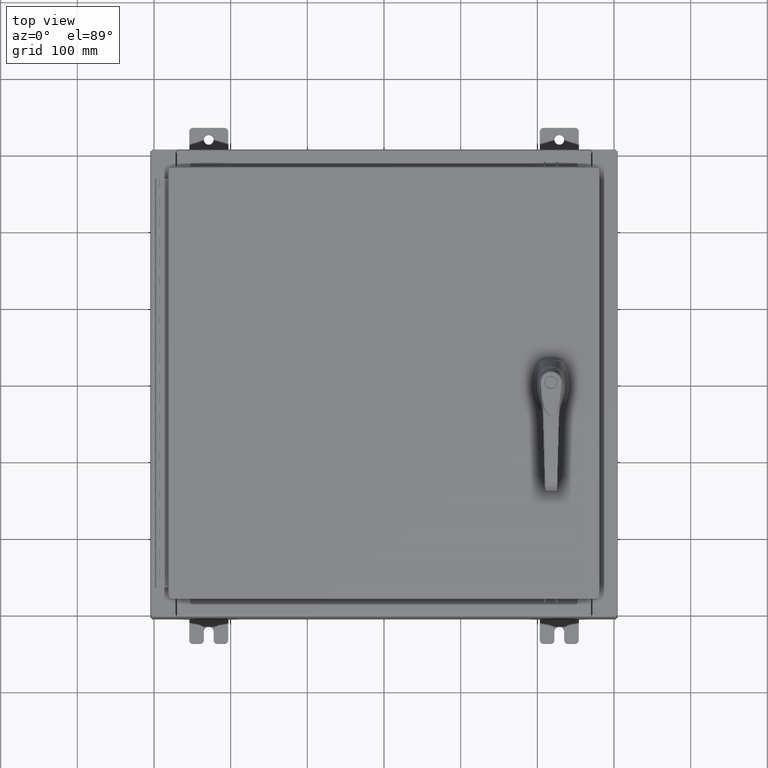
[diagram: clean part render]
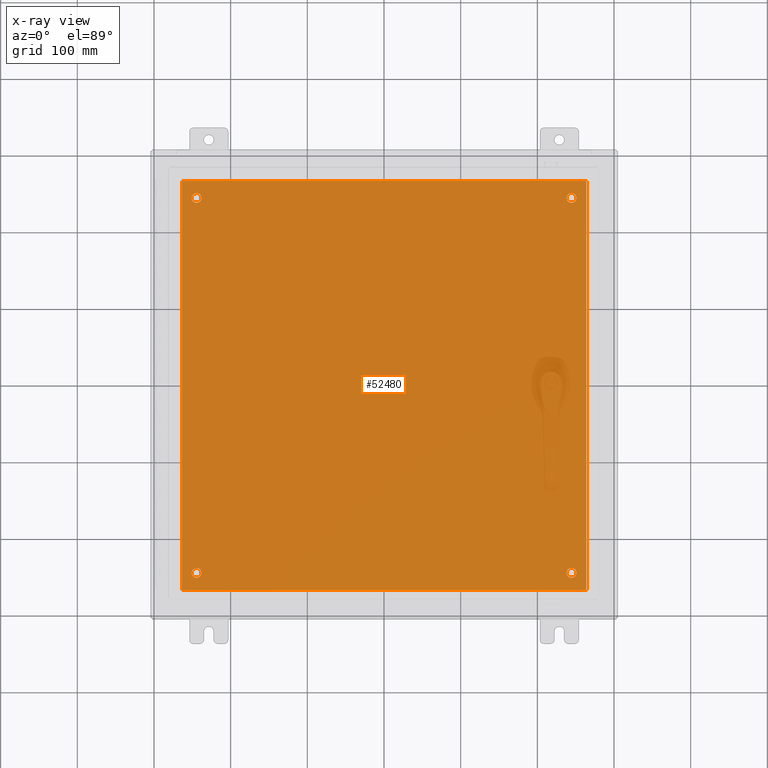
[diagram: x-ray — body ghosted, one internal face saturated and labeled with its STEP entity id]
A machine part, top view, then the same camera in x-ray: the body is ghosted and one INTERNAL B-rep face — a face not visible from any outside direction — is saturated and labeled: STEP entity #52480.
In plain terms, the highlighted planar face has unit normal (0, 0, -1).
Its self-contained STEP definition (entity closure, byte-faithful):
#115 = CARTESIAN_POINT ( 'NONE',  ( 10.38300000000000100, 10.50000000000000200, -0.1039999999999999800 ) ) ;
#2735 = DIRECTION ( 'NONE',  ( -0.0000000000000000000, -0.0000000000000000000, 1.000000000000000000 ) ) ;
#4047 = CARTESIAN_POINT ( 'NONE',  ( -9.875000000000005300, 9.625000000000001800, -0.1039999999999999800 ) ) ;
#4534 = DIRECTION ( 'NONE',  ( -0.0000000000000000000, -0.0000000000000000000, 1.000000000000000000 ) ) ;
#5247 = EDGE_CURVE ( 'NONE', #19020, #60991, #20676, .T. ) ;
#5409 = CIRCLE ( 'NONE', #19368, 0.2499999999999987000 ) ;
#5856 = LINE ( 'NONE', #7192, #26173 ) ;
#7192 = CARTESIAN_POINT ( 'NONE',  ( -10.50000000000000000, 10.50000000000000200, -0.1039999999999999800 ) ) ;
#8378 = ORIENTED_EDGE ( 'NONE', *, *, #17510, .T. ) ;
#11154 = VERTEX_POINT ( 'NONE', #41357 ) ;
#11224 = FACE_BOUND ( 'NONE', #109229, .T. ) ;
#11359 = CARTESIAN_POINT ( 'NONE',  ( -10.38299999999999900, 10.50000000000000400, -0.1040000000000031300 ) ) ;
#12544 = AXIS2_PLACEMENT_3D ( 'NONE', #54586, #2735, #63303 ) ;
#13971 = CIRCLE ( 'NONE', #71904, 0.2499999999999987000 ) ;
#14501 = CARTESIAN_POINT ( 'NONE',  ( -10.38299999999999900, 10.50000000000000400, -0.1040000000000031300 ) ) ;
#15889 = DIRECTION ( 'NONE',  ( -1.000000000000000000, -0.0000000000000000000, -0.0000000000000000000 ) ) ;
#16528 = VERTEX_POINT ( 'NONE', #55709 ) ;
#17510 = EDGE_CURVE ( 'NONE', #93867, #82567, #70919, .T. ) ;
#18581 = CARTESIAN_POINT ( 'NONE',  ( 0.0000000000000000000, 0.0000000000000000000, -0.1039999999999999800 ) ) ;
#19020 = VERTEX_POINT ( 'NONE', #100334 ) ;
#19368 = AXIS2_PLACEMENT_3D ( 'NONE', #56373, #4534, #65114 ) ;
#19635 = EDGE_CURVE ( 'NONE', #87899, #46267, #53443, .T. ) ;
#19750 = ORIENTED_EDGE ( 'NONE', *, *, #19635, .F. ) ;
#20676 = CIRCLE ( 'NONE', #77147, 0.2499999999999976100 ) ;
#20921 = ORIENTED_EDGE ( 'NONE', *, *, #33849, .T. ) ;
#22048 = ORIENTED_EDGE ( 'NONE', *, *, #34391, .T. ) ;
#22339 = CARTESIAN_POINT ( 'NONE',  ( 9.625000000000005300, 9.625000000000001800, -0.1039999999999999800 ) ) ;
#23161 = EDGE_CURVE ( 'NONE', #16528, #76940, #13971, .T. ) ;
#23205 = DIRECTION ( 'NONE',  ( 0.0000000000000000000, -1.000000000000000000, 0.0000000000000000000 ) ) ;
#24443 = CARTESIAN_POINT ( 'NONE',  ( -10.50000000000000200, -10.50000000000000000, -0.1039999999999999800 ) ) ;
#25627 = EDGE_CURVE ( 'NONE', #66623, #97314, #88145, .T. ) ;
#26173 = VECTOR ( 'NONE', #15889, 39.37007874015748100 ) ;
#27233 = DIRECTION ( 'NONE',  ( -1.000000000000000000, 0.0000000000000000000, -0.0000000000000000000 ) ) ;
#30990 = DIRECTION ( 'NONE',  ( -1.000000000000000000, 0.0000000000000000000, 0.0000000000000000000 ) ) ;
#31521 = FACE_BOUND ( 'NONE', #42584, .T. ) ;
#31724 = EDGE_LOOP ( 'NONE', ( #20921, #72879 ) ) ;
#32000 = CARTESIAN_POINT ( 'NONE',  ( 9.625000000000005300, -9.625000000000001800, -0.1039999999999999800 ) ) ;
#32039 = CARTESIAN_POINT ( 'NONE',  ( 9.875000000000003600, -9.625000000000001800, -0.1039999999999999800 ) ) ;
#32383 = ORIENTED_EDGE ( 'NONE', *, *, #23161, .T. ) ;
#33849 = EDGE_CURVE ( 'NONE', #60991, #19020, #69316, .T. ) ;
#34092 = AXIS2_PLACEMENT_3D ( 'NONE', #89423, #37503, #98191 ) ;
#34211 = DIRECTION ( 'NONE',  ( -0.0000000000000000000, -0.0000000000000000000, 1.000000000000000000 ) ) ;
#34391 = EDGE_CURVE ( 'NONE', #97314, #66623, #85453, .T. ) ;
#34541 = EDGE_CURVE ( 'NONE', #46267, #11154, #62442, .T. ) ;
#36294 = EDGE_CURVE ( 'NONE', #82567, #93867, #105594, .T. ) ;
#37503 = DIRECTION ( 'NONE',  ( -0.0000000000000000000, -0.0000000000000000000, 1.000000000000000000 ) ) ;
#40654 = DIRECTION ( 'NONE',  ( -1.000000000000000000, 0.0000000000000000000, 0.0000000000000000000 ) ) ;
#41357 = CARTESIAN_POINT ( 'NONE',  ( 10.38299999999999900, -10.50000000000000000, -0.1039999999999999800 ) ) ;
#42584 = EDGE_LOOP ( 'NONE', ( #76216, #22048 ) ) ;
#46267 = VERTEX_POINT ( 'NONE', #47818 ) ;
#47818 = CARTESIAN_POINT ( 'NONE',  ( -10.38299999999999900, -10.50000000000000000, -0.1040000000000031300 ) ) ;
#49357 = EDGE_LOOP ( 'NONE', ( #95082, #8378 ) ) ;
#50468 = DIRECTION ( 'NONE',  ( -0.0000000000000000000, -0.0000000000000000000, 1.000000000000000000 ) ) ;
#50617 = DIRECTION ( 'NONE',  ( -0.0000000000000000000, -0.0000000000000000000, 1.000000000000000000 ) ) ;
#51838 = FACE_OUTER_BOUND ( 'NONE', #81875, .T. ) ;
#52480 = ADVANCED_FACE ( 'NONE', ( #11224, #31521, #97965, #74890, #51838 ), #112109, .T. ) ;
#53443 = LINE ( 'NONE', #14501, #96858 ) ;
#54586 = CARTESIAN_POINT ( 'NONE',  ( 9.625000000000005300, -9.625000000000001800, -0.1039999999999999800 ) ) ;
#55709 = CARTESIAN_POINT ( 'NONE',  ( -9.375000000000005300, -9.625000000000001800, -0.1039999999999999800 ) ) ;
#56373 = CARTESIAN_POINT ( 'NONE',  ( -9.625000000000005300, -9.625000000000001800, -0.1039999999999999800 ) ) ;
#60991 = VERTEX_POINT ( 'NONE', #109421 ) ;
#61691 = CARTESIAN_POINT ( 'NONE',  ( 9.375000000000007100, -9.625000000000001800, -0.1039999999999999800 ) ) ;
#61774 = CARTESIAN_POINT ( 'NONE',  ( -9.875000000000005300, -9.625000000000001800, -0.1039999999999999800 ) ) ;
#62442 = LINE ( 'NONE', #24443, #103097 ) ;
#63303 = DIRECTION ( 'NONE',  ( -1.000000000000000000, 0.0000000000000000000, 0.0000000000000000000 ) ) ;
#64308 = CARTESIAN_POINT ( 'NONE',  ( -9.375000000000005300, 9.625000000000001800, -0.1039999999999999800 ) ) ;
#65114 = DIRECTION ( 'NONE',  ( -1.000000000000000000, 0.0000000000000000000, 0.0000000000000000000 ) ) ;
#66623 = VERTEX_POINT ( 'NONE', #32039 ) ;
#67009 = VECTOR ( 'NONE', #80060, 39.37007874015748100 ) ;
#69316 = CIRCLE ( 'NONE', #70303, 0.2499999999999976100 ) ;
#69722 = LINE ( 'NONE', #106929, #67009 ) ;
#70303 = AXIS2_PLACEMENT_3D ( 'NONE', #22339, #82877, #30990 ) ;
#70919 = CIRCLE ( 'NONE', #88328, 0.2499999999999987000 ) ;
#71400 = ORIENTED_EDGE ( 'NONE', *, *, #34541, .F. ) ;
#71904 = AXIS2_PLACEMENT_3D ( 'NONE', #102409, #50468, #111156 ) ;
#72879 = ORIENTED_EDGE ( 'NONE', *, *, #5247, .T. ) ;
#73928 = AXIS2_PLACEMENT_3D ( 'NONE', #32000, #92617, #40654 ) ;
#74890 = FACE_BOUND ( 'NONE', #49357, .T. ) ;
#76216 = ORIENTED_EDGE ( 'NONE', *, *, #25627, .T. ) ;
#76391 = EDGE_CURVE ( 'NONE', #11154, #76901, #69722, .T. ) ;
#76901 = VERTEX_POINT ( 'NONE', #115 ) ;
#76940 = VERTEX_POINT ( 'NONE', #61774 ) ;
#77147 = AXIS2_PLACEMENT_3D ( 'NONE', #86112, #34211, #94872 ) ;
#78205 = EDGE_CURVE ( 'NONE', #76901, #87899, #5856, .T. ) ;
#79136 = DIRECTION ( 'NONE',  ( 0.0000000000000000000, 0.0000000000000000000, -1.000000000000000000 ) ) ;
#80060 = DIRECTION ( 'NONE',  ( 0.0000000000000000000, 1.000000000000000000, 0.0000000000000000000 ) ) ;
#81875 = EDGE_LOOP ( 'NONE', ( #71400, #19750, #85465, #101148 ) ) ;
#82567 = VERTEX_POINT ( 'NONE', #64308 ) ;
#82877 = DIRECTION ( 'NONE',  ( -0.0000000000000000000, -0.0000000000000000000, 1.000000000000000000 ) ) ;
#85453 = CIRCLE ( 'NONE', #73928, 0.2499999999999976100 ) ;
#85465 = ORIENTED_EDGE ( 'NONE', *, *, #78205, .F. ) ;
#86112 = CARTESIAN_POINT ( 'NONE',  ( 9.625000000000005300, 9.625000000000001800, -0.1039999999999999800 ) ) ;
#87899 = VERTEX_POINT ( 'NONE', #11359 ) ;
#88145 = CIRCLE ( 'NONE', #12544, 0.2499999999999976100 ) ;
#88328 = AXIS2_PLACEMENT_3D ( 'NONE', #102555, #50617, #111308 ) ;
#89423 = CARTESIAN_POINT ( 'NONE',  ( -9.625000000000005300, 9.625000000000001800, -0.1039999999999999800 ) ) ;
#92617 = DIRECTION ( 'NONE',  ( -0.0000000000000000000, -0.0000000000000000000, 1.000000000000000000 ) ) ;
#93483 = EDGE_CURVE ( 'NONE', #76940, #16528, #5409, .T. ) ;
#93741 = DIRECTION ( 'NONE',  ( 1.000000000000000000, 0.0000000000000000000, 0.0000000000000000000 ) ) ;
#93867 = VERTEX_POINT ( 'NONE', #4047 ) ;
#94872 = DIRECTION ( 'NONE',  ( -1.000000000000000000, 0.0000000000000000000, 0.0000000000000000000 ) ) ;
#95082 = ORIENTED_EDGE ( 'NONE', *, *, #36294, .T. ) ;
#95900 = AXIS2_PLACEMENT_3D ( 'NONE', #18581, #79136, #27233 ) ;
#96858 = VECTOR ( 'NONE', #23205, 39.37007874015748100 ) ;
#97314 = VERTEX_POINT ( 'NONE', #61691 ) ;
#97965 = FACE_BOUND ( 'NONE', #31724, .T. ) ;
#98191 = DIRECTION ( 'NONE',  ( -1.000000000000000000, 0.0000000000000000000, 0.0000000000000000000 ) ) ;
#100334 = CARTESIAN_POINT ( 'NONE',  ( 9.375000000000007100, 9.625000000000001800, -0.1039999999999999800 ) ) ;
#101148 = ORIENTED_EDGE ( 'NONE', *, *, #76391, .F. ) ;
#101328 = ORIENTED_EDGE ( 'NONE', *, *, #93483, .T. ) ;
#102409 = CARTESIAN_POINT ( 'NONE',  ( -9.625000000000005300, -9.625000000000001800, -0.1039999999999999800 ) ) ;
#102555 = CARTESIAN_POINT ( 'NONE',  ( -9.625000000000005300, 9.625000000000001800, -0.1039999999999999800 ) ) ;
#103097 = VECTOR ( 'NONE', #93741, 39.37007874015748100 ) ;
#105594 = CIRCLE ( 'NONE', #34092, 0.2499999999999987000 ) ;
#106929 = CARTESIAN_POINT ( 'NONE',  ( 10.38300000000000100, -10.50000000000000200, -0.1040000000000009100 ) ) ;
#109229 = EDGE_LOOP ( 'NONE', ( #32383, #101328 ) ) ;
#109421 = CARTESIAN_POINT ( 'NONE',  ( 9.875000000000003600, 9.625000000000001800, -0.1039999999999999800 ) ) ;
#111156 = DIRECTION ( 'NONE',  ( -1.000000000000000000, 0.0000000000000000000, 0.0000000000000000000 ) ) ;
#111308 = DIRECTION ( 'NONE',  ( -1.000000000000000000, 0.0000000000000000000, 0.0000000000000000000 ) ) ;
#112109 = PLANE ( 'NONE',  #95900 ) ;